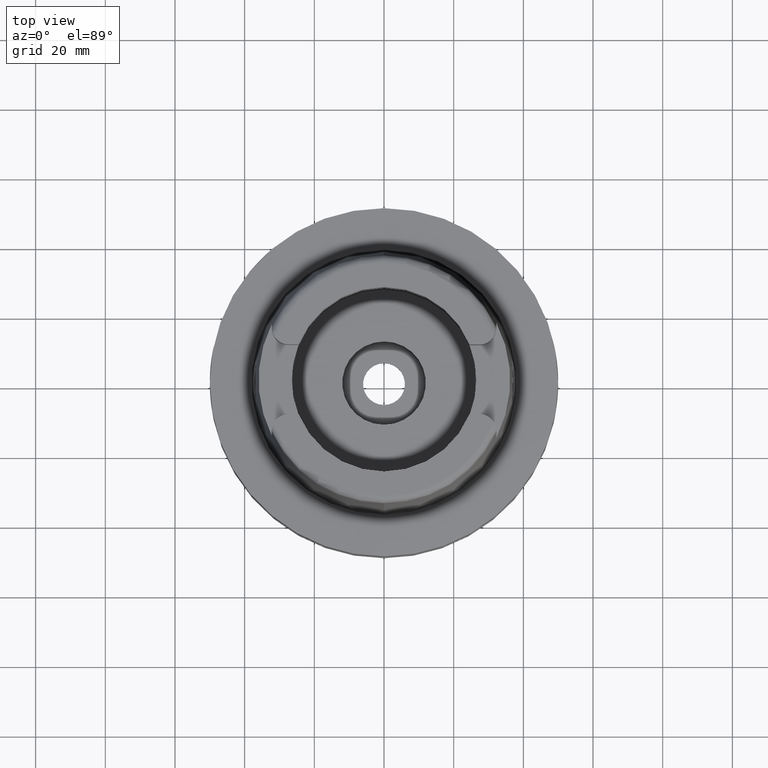
[diagram: clean part render]
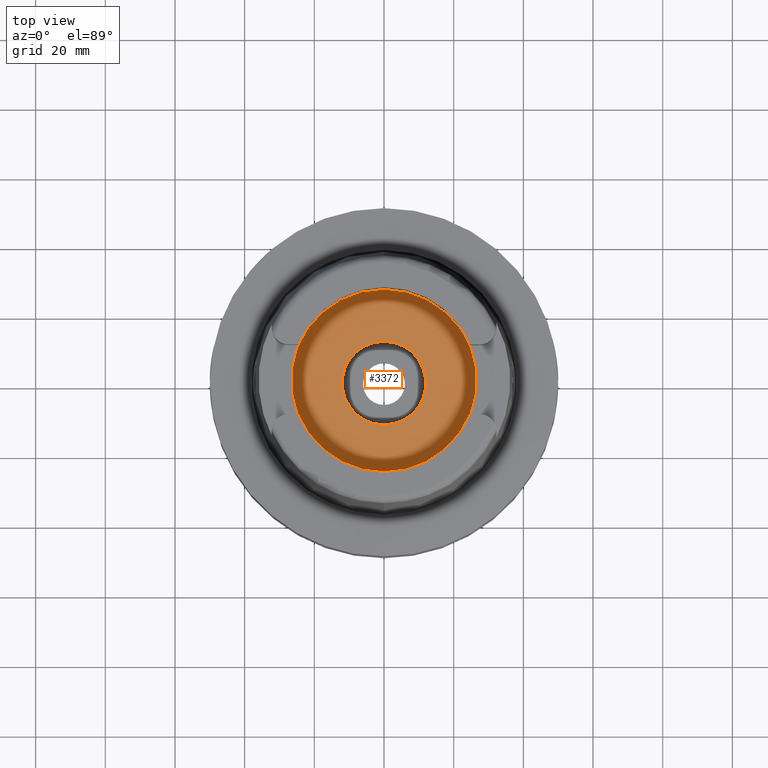
[diagram: same view with one face highlighted and labeled with its STEP entity id]
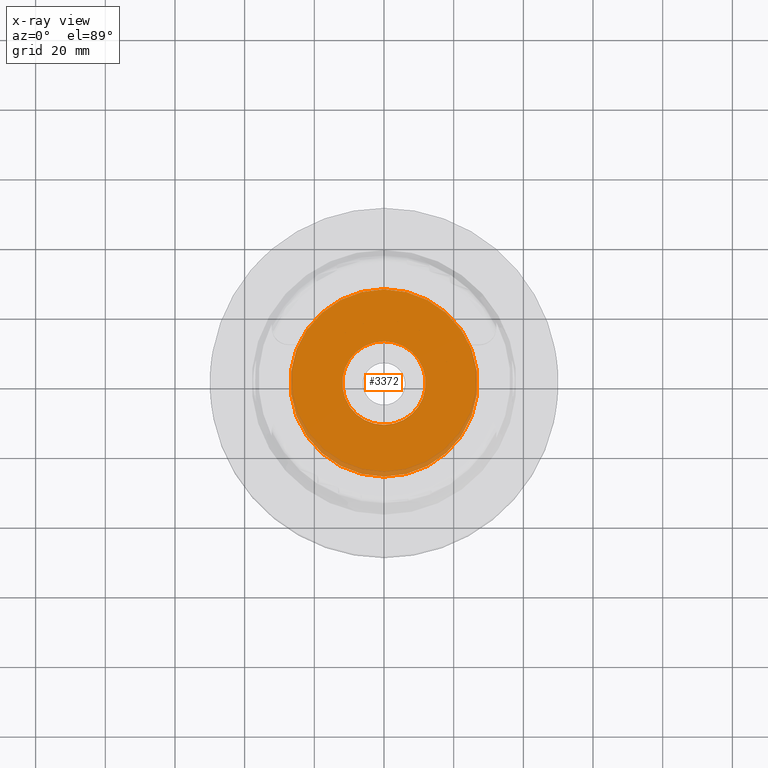
[diagram: x-ray of the same camera — body ghosted, the highlighted face saturated]
A machine part, top view. The second image highlights one B-rep face of the part: STEP entity #3372.
The next image is the same camera in x-ray: the body ghosted, the highlighted face saturated — about 5% of this face is hidden behind the body in this view.
In plain terms, the highlighted planar face has unit normal (0, 0, -1).
Its self-contained STEP definition (entity closure, byte-faithful):
#940=CARTESIAN_POINT('',(0.E0,1.932002790335E-14,-1.245E1));
#941=DIRECTION('',(0.E0,0.E0,-1.E0));
#942=DIRECTION('',(0.E0,-1.E0,0.E0));
#943=AXIS2_PLACEMENT_3D('',#940,#941,#942);
#948=CARTESIAN_POINT('',(0.E0,1.932002790335E-14,-1.245E1));
#949=DIRECTION('',(0.E0,0.E0,-1.E0));
#950=DIRECTION('',(0.E0,1.E0,0.E0));
#951=AXIS2_PLACEMENT_3D('',#948,#949,#950);
#956=CARTESIAN_POINT('',(0.E0,1.932002790335E-14,-1.245E1));
#957=DIRECTION('',(0.E0,0.E0,1.E0));
#958=DIRECTION('',(0.E0,-1.E0,0.E0));
#959=AXIS2_PLACEMENT_3D('',#956,#957,#958);
#964=CARTESIAN_POINT('',(0.E0,1.932002790335E-14,-1.245E1));
#965=DIRECTION('',(0.E0,0.E0,1.E0));
#966=DIRECTION('',(0.E0,1.E0,0.E0));
#967=AXIS2_PLACEMENT_3D('',#964,#965,#966);
#2638=CARTESIAN_POINT('',(0.E0,1.2E1,-1.245E1));
#2639=VERTEX_POINT('',#2638);
#2640=CARTESIAN_POINT('',(0.E0,-1.2E1,-1.245E1));
#2641=VERTEX_POINT('',#2640);
#2642=CARTESIAN_POINT('',(0.E0,-2.69E1,-1.245E1));
#2643=CARTESIAN_POINT('',(0.E0,2.69E1,-1.245E1));
#2644=VERTEX_POINT('',#2642);
#2645=VERTEX_POINT('',#2643);
#3357=CARTESIAN_POINT('',(0.E0,1.072178272654E-14,-1.245E1));
#3358=DIRECTION('',(0.E0,0.E0,-1.E0));
#3359=DIRECTION('',(0.E0,-1.E0,0.E0));
#3360=AXIS2_PLACEMENT_3D('',#3357,#3358,#3359);
#3361=PLANE('',#3360);
#3362=ORIENTED_EDGE('',*,*,#3350,.T.);
#3363=ORIENTED_EDGE('',*,*,#3339,.T.);
#3364=EDGE_LOOP('',(#3362,#3363));
#3365=FACE_OUTER_BOUND('',#3364,.F.);
#3367=ORIENTED_EDGE('',*,*,#3366,.T.);
#3369=ORIENTED_EDGE('',*,*,#3368,.T.);
#3370=EDGE_LOOP('',(#3367,#3369));
#3371=FACE_BOUND('',#3370,.F.);
#944=CIRCLE('',#943,2.69E1);
#952=CIRCLE('',#951,2.69E1);
#960=CIRCLE('',#959,1.2E1);
#968=CIRCLE('',#967,1.2E1);
#3339=EDGE_CURVE('',#2645,#2644,#952,.T.);
#3350=EDGE_CURVE('',#2644,#2645,#944,.T.);
#3366=EDGE_CURVE('',#2641,#2639,#960,.T.);
#3368=EDGE_CURVE('',#2639,#2641,#968,.T.);
#3372=ADVANCED_FACE('',(#3365,#3371),#3361,.F.);